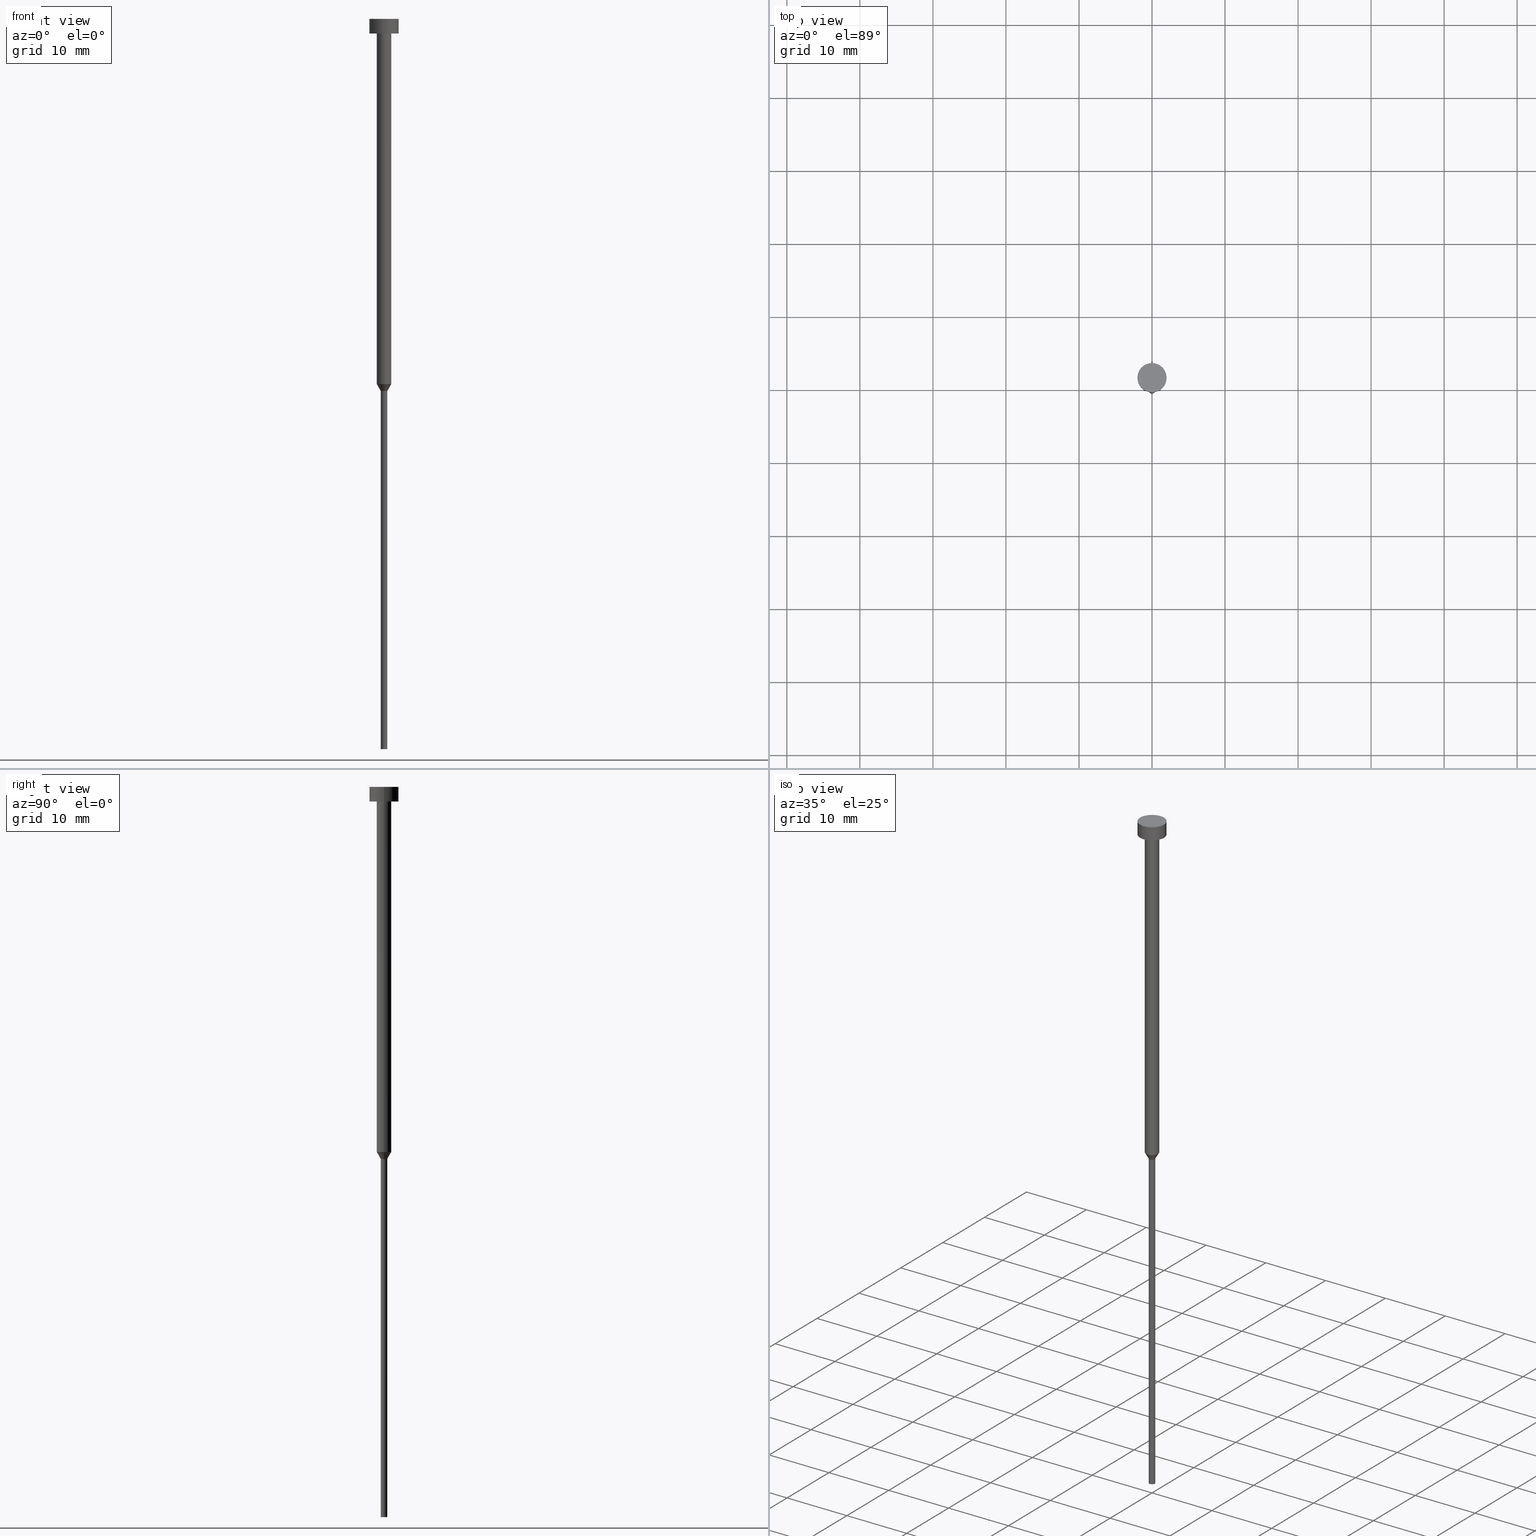
[diagram: canonical four-view strip — front | top / right | iso, engineering-drawing reading convention]
A machine part, canonical four-view strip (front | top / right | iso — engineering-drawing reading convention). The complete STEP part file that produces these views, byte-faithful:
ISO-10303-21;
HEADER;
FILE_DESCRIPTION (( 'STEP AP203' ),
    '1' );
FILE_NAME ('7cfc.STEP',
    '2023-02-13T12:41:23',
    ( '' ),
    ( '' ),
    'SwSTEP 2.0',
    'SolidWorks 2019',
    '' );
FILE_SCHEMA (( 'CONFIG_CONTROL_DESIGN' ));
ENDSEC;

DATA;
#1 = APPROVAL_DATE_TIME ( #293, #246 ) ;
#2 = CARTESIAN_POINT ( 'NONE',  ( 1.000000000000003331, 0.000000000000000000, 0.000000000000000000 ) ) ;
#3 = ORIENTED_EDGE ( 'NONE', *, *, #265, .T. ) ;
#4 = FACE_OUTER_BOUND ( 'NONE', #162, .T. ) ;
#5 = DIRECTION ( 'NONE',  ( -0.000000000000000000, -0.000000000000000000, 1.000000000000000000 ) ) ;
#6 = EDGE_LOOP ( 'NONE', ( #121, #68, #161, #206 ) ) ;
#7 = EDGE_CURVE ( 'NONE', #303, #135, #107, .T. ) ;
#8 = CYLINDRICAL_SURFACE ( 'NONE', #292, 1.000000000000003331 ) ;
#9 = ORIENTED_EDGE ( 'NONE', *, *, #182, .F. ) ;
#10 = DIRECTION ( 'NONE',  ( 1.000000000000000000, 0.000000000000000000, 0.000000000000000000 ) ) ;
#11 = DIRECTION ( 'NONE',  ( 1.000000000000000000, 0.000000000000000000, 0.000000000000000000 ) ) ;
#12 = ORIENTED_EDGE ( 'NONE', *, *, #60, .T. ) ;
#13 = PERSON_AND_ORGANIZATION_ROLE ( 'creator' ) ;
#14 = AXIS2_PLACEMENT_3D ( 'NONE', #110, #197, #294 ) ;
#15 = CARTESIAN_POINT ( 'NONE',  ( -1.000000000000003553, 1.224646799147357398E-16, -2.000000000000000444 ) ) ;
#16 = EDGE_CURVE ( 'NONE', #325, #320, #39, .T. ) ;
#17 = CLOSED_SHELL ( 'NONE', ( #290, #202, #335, #279, #67, #112, #228, #148, #81, #88, #217 ) ) ;
#18 = DIRECTION ( 'NONE',  ( -0.000000000000000000, -0.000000000000000000, 1.000000000000000000 ) ) ;
#19 = CC_DESIGN_PERSON_AND_ORGANIZATION_ASSIGNMENT ( #45, #126, ( #225 ) ) ;
#20 = CARTESIAN_POINT ( 'NONE',  ( 0.4500000000000000111, 0.000000000000000000, 0.000000000000000000 ) ) ;
#21 = FACE_OUTER_BOUND ( 'NONE', #130, .T. ) ;
#22 = LOCAL_TIME ( 13, 41, 23.00000000000000000, #183 ) ;
#23 = VERTEX_POINT ( 'NONE', #353 ) ;
#24 = EDGE_LOOP ( 'NONE', ( #187, #52 ) ) ;
#25 = APPROVAL_DATE_TIME ( #232, #125 ) ;
#26 = EDGE_CURVE ( 'NONE', #140, #135, #331, .T. ) ;
#27 = DIRECTION ( 'NONE',  ( -0.000000000000000000, -0.000000000000000000, 1.000000000000000000 ) ) ;
#28 = APPLICATION_CONTEXT ( 'configuration controlled 3d designs of mechanical parts and assemblies' ) ;
#29 = CARTESIAN_POINT ( 'NONE',  ( -1.000000000000003109, 1.224646799147356905E-16, -50.00000000000000000 ) ) ;
#30 = ORIENTED_EDGE ( 'NONE', *, *, #256, .T. ) ;
#31 = CC_DESIGN_PERSON_AND_ORGANIZATION_ASSIGNMENT ( #150, #205, ( #74 ) ) ;
#32 = CC_DESIGN_APPROVAL ( #125, ( #255 ) ) ;
#33 = DIRECTION ( 'NONE',  ( 0.000000000000000000, -0.000000000000000000, 1.000000000000000000 ) ) ;
#34 = FACE_OUTER_BOUND ( 'NONE', #299, .T. ) ;
#35 = CARTESIAN_POINT ( 'NONE',  ( 0.000000000000000000, 0.000000000000000000, -100.0000000000000000 ) ) ;
#36 = ORGANIZATION ( 'NEUR�EN�', 'NEUR�EN�', '' ) ;
#37 = CARTESIAN_POINT ( 'NONE',  ( -2.000000000000000000, 2.449293598294706414E-16, -2.449293598294705921E-16 ) ) ;
#38 = DIRECTION ( 'NONE',  ( -0.000000000000000000, -0.000000000000000000, 1.000000000000000000 ) ) ;
#39 = CIRCLE ( 'NONE', #240, 1.000000000000003553 ) ;
#40 = DIRECTION ( 'NONE',  ( 1.000000000000000000, 0.000000000000000000, 0.000000000000000000 ) ) ;
#41 = AXIS2_PLACEMENT_3D ( 'NONE', #159, #242, #259 ) ;
#42 = AXIS2_PLACEMENT_3D ( 'NONE', #222, #61, #247 ) ;
#43 = EDGE_CURVE ( 'NONE', #311, #185, #282, .T. ) ;
#44 = CARTESIAN_POINT ( 'NONE',  ( -0.4500000000000000111, 5.510910596163088939E-17, 0.000000000000000000 ) ) ;
#45 = PERSON_AND_ORGANIZATION ( #326, #36 ) ;
#46 = ORIENTED_EDGE ( 'NONE', *, *, #221, .T. ) ;
#47 = EDGE_CURVE ( 'NONE', #302, #140, #351, .T. ) ;
#48 = EDGE_LOOP ( 'NONE', ( #296, #128, #59, #350 ) ) ;
#49 = APPROVAL_STATUS ( 'not_yet_approved' ) ;
#50 = COORDINATED_UNIVERSAL_TIME_OFFSET ( 1, 0, .AHEAD. ) ;
#51 = LINE ( 'NONE', #29, #105 ) ;
#52 = ORIENTED_EDGE ( 'NONE', *, *, #43, .T. ) ;
#53 = CARTESIAN_POINT ( 'NONE',  ( 1.000000000000003109, 0.000000000000000000, -50.00000000000000000 ) ) ;
#54 = EDGE_LOOP ( 'NONE', ( #111, #124 ) ) ;
#55 = APPLICATION_CONTEXT ( 'configuration controlled 3d designs of mechanical parts and assemblies' ) ;
#56 = EDGE_CURVE ( 'NONE', #185, #311, #341, .T. ) ;
#57 = DIRECTION ( 'NONE',  ( -1.000000000000000000, 0.000000000000000000, -0.000000000000000000 ) ) ;
#58 = CARTESIAN_POINT ( 'NONE',  ( 0.000000000000000000, 0.000000000000000000, -50.00000000000000000 ) ) ;
#59 = ORIENTED_EDGE ( 'NONE', *, *, #26, .T. ) ;
#60 = EDGE_CURVE ( 'NONE', #303, #320, #87, .T. ) ;
#61 = DIRECTION ( 'NONE',  ( -0.000000000000000000, -0.000000000000000000, 1.000000000000000000 ) ) ;
#62 = APPROVAL_STATUS ( 'not_yet_approved' ) ;
#63 = CARTESIAN_POINT ( 'NONE',  ( -0.4500000000000000111, 5.510910596163088939E-17, -100.0000000000000000 ) ) ;
#64 =( NAMED_UNIT ( * ) PLANE_ANGLE_UNIT ( ) SI_UNIT ( $, .RADIAN. ) );
#65 = AXIS2_PLACEMENT_3D ( 'NONE', #66, #312, #40 ) ;
#66 = CARTESIAN_POINT ( 'NONE',  ( 0.000000000000000000, 0.000000000000000000, -2.449293598294705921E-16 ) ) ;
#67 = ADVANCED_FACE ( 'NONE', ( #21 ), #177, .T. ) ;
#68 = ORIENTED_EDGE ( 'NONE', *, *, #182, .T. ) ;
#69 = EDGE_CURVE ( 'NONE', #355, #23, #230, .T. ) ;
#70 = AXIS2_PLACEMENT_3D ( 'NONE', #213, #173, #168 ) ;
#71 = PERSON_AND_ORGANIZATION ( #326, #36 ) ;
#72 = ORIENTED_EDGE ( 'NONE', *, *, #16, .T. ) ;
#73 = CARTESIAN_POINT ( 'NONE',  ( 0.000000000000000000, 0.000000000000000000, 0.000000000000000000 ) ) ;
#74 = PRODUCT_DEFINITION_FORMATION_WITH_SPECIFIED_SOURCE ( 'LIBOVOLN�', '', #225, .NOT_KNOWN. ) ;
#75 = CARTESIAN_POINT ( 'NONE',  ( 1.000000000000003109, 0.000000000000000000, -50.00000000000000000 ) ) ;
#76 = CARTESIAN_POINT ( 'NONE',  ( -2.000000000000000000, 2.449293598294706414E-16, 0.000000000000000000 ) ) ;
#77 = FACE_OUTER_BOUND ( 'NONE', #289, .T. ) ;
#78 = DIRECTION ( 'NONE',  ( 1.000000000000000000, 0.000000000000000000, 0.000000000000000000 ) ) ;
#79 = CARTESIAN_POINT ( 'NONE',  ( 0.000000000000000000, 0.000000000000000000, 0.000000000000000000 ) ) ;
#80 = ORIENTED_EDGE ( 'NONE', *, *, #120, .T. ) ;
#81 = ADVANCED_FACE ( 'NONE', ( #254, #316 ), #252, .T. ) ;
#82 = DIRECTION ( 'NONE',  ( 1.000000000000000000, 0.000000000000000000, 0.000000000000000000 ) ) ;
#83 = PRODUCT_DEFINITION_SHAPE ( 'NONE', 'NONE',  #207 ) ;
#84 = CARTESIAN_POINT ( 'NONE',  ( -2.000000000000000000, 2.449293598294706414E-16, -2.000000000000000444 ) ) ;
#85 = AXIS2_PLACEMENT_3D ( 'NONE', #196, #27, #236 ) ;
#86 =( LENGTH_UNIT ( ) NAMED_UNIT ( * ) SI_UNIT ( .MILLI., .METRE. ) );
#87 = LINE ( 'NONE', #181, #223 ) ;
#88 = ADVANCED_FACE ( 'NONE', ( #214 ), #104, .T. ) ;
#89 = PRODUCT_RELATED_PRODUCT_CATEGORY ( 'detail', '', ( #225 ) ) ;
#90 = EDGE_LOOP ( 'NONE', ( #245, #30, #237, #191 ) ) ;
#91 = AXIS2_PLACEMENT_3D ( 'NONE', #167, #5, #82 ) ;
#92 = DIRECTION ( 'NONE',  ( -0.000000000000000000, -0.000000000000000000, 1.000000000000000000 ) ) ;
#93 = ORIENTED_EDGE ( 'NONE', *, *, #199, .F. ) ;
#94 = PERSON_AND_ORGANIZATION_ROLE ( 'creator' ) ;
#95 = ORIENTED_EDGE ( 'NONE', *, *, #346, .F. ) ;
#96 = SHAPE_DEFINITION_REPRESENTATION ( #83, #233 ) ;
#97 = APPLICATION_PROTOCOL_DEFINITION ( 'international standard', 'config_control_design', 1994, #55 ) ;
#98 = CARTESIAN_POINT ( 'NONE',  ( 0.000000000000000000, 0.000000000000000000, -50.95262794416288443 ) ) ;
#99 = AXIS2_PLACEMENT_3D ( 'NONE', #58, #211, #215 ) ;
#100 = DIRECTION ( 'NONE',  ( -0.5000000000000014433, 6.123233995736784525E-17, 0.8660254037844379305 ) ) ;
#101 = APPROVAL ( #62, 'NEUR�EN�' ) ;
#102 = APPROVAL_ROLE ( '' ) ;
#103 = DIRECTION ( 'NONE',  ( -0.000000000000000000, -0.000000000000000000, 1.000000000000000000 ) ) ;
#104 = CYLINDRICAL_SURFACE ( 'NONE', #186, 2.000000000000000000 ) ;
#105 = VECTOR ( 'NONE', #100, 999.9999999999998863 ) ;
#106 = CARTESIAN_POINT ( 'NONE',  ( 0.000000000000000000, 0.000000000000000000, -2.000000000000000444 ) ) ;
#107 = CIRCLE ( 'NONE', #99, 1.000000000000003109 ) ;
#108 = CARTESIAN_POINT ( 'NONE',  ( 2.000000000000000000, 0.000000000000000000, 0.000000000000000000 ) ) ;
#109 = CARTESIAN_POINT ( 'NONE',  ( 0.000000000000000000, -2.000000000000000000, -2.000000000000000444 ) ) ;
#110 = CARTESIAN_POINT ( 'NONE',  ( 0.000000000000000000, 0.000000000000000000, 0.000000000000000000 ) ) ;
#111 = ORIENTED_EDGE ( 'NONE', *, *, #349, .F. ) ;
#112 = ADVANCED_FACE ( 'NONE', ( #77 ), #220, .T. ) ;
#113 = CYLINDRICAL_SURFACE ( 'NONE', #42, 0.4500000000000000111 ) ;
#114 = CIRCLE ( 'NONE', #285, 1.000000000000003553 ) ;
#115 = AXIS2_PLACEMENT_3D ( 'NONE', #171, #342, #144 ) ;
#116 = CALENDAR_DATE ( 2023, 13, 2 ) ;
#117 = DIRECTION ( 'NONE',  ( 1.000000000000000000, 0.000000000000000000, 0.000000000000000000 ) ) ;
#118 = DIRECTION ( 'NONE',  ( 1.000000000000000000, 0.000000000000000000, 0.000000000000000000 ) ) ;
#119 = PERSON_AND_ORGANIZATION ( #326, #36 ) ;
#120 = EDGE_CURVE ( 'NONE', #337, #231, #323, .T. ) ;
#121 = ORIENTED_EDGE ( 'NONE', *, *, #349, .T. ) ;
#122 = DIRECTION ( 'NONE',  ( -1.000000000000000000, 0.000000000000000000, -0.000000000000000000 ) ) ;
#123 = ORIENTED_EDGE ( 'NONE', *, *, #132, .F. ) ;
#124 = ORIENTED_EDGE ( 'NONE', *, *, #120, .F. ) ;
#125 = APPROVAL ( #354, 'NEUR�EN�' ) ;
#126 = PERSON_AND_ORGANIZATION_ROLE ( 'design_owner' ) ;
#127 = ORIENTED_EDGE ( 'NONE', *, *, #43, .F. ) ;
#128 = ORIENTED_EDGE ( 'NONE', *, *, #271, .T. ) ;
#129 = FACE_OUTER_BOUND ( 'NONE', #164, .T. ) ;
#130 = EDGE_LOOP ( 'NONE', ( #123, #95 ) ) ;
#131 = CARTESIAN_POINT ( 'NONE',  ( 0.000000000000000000, 0.000000000000000000, -1.224646799147352961E-16 ) ) ;
#132 = EDGE_CURVE ( 'NONE', #302, #355, #198, .T. ) ;
#133 = PERSON_AND_ORGANIZATION ( #326, #36 ) ;
#134 = DIRECTION ( 'NONE',  ( 1.000000000000000000, 0.000000000000000000, 0.000000000000000000 ) ) ;
#135 = VERTEX_POINT ( 'NONE', #53 ) ;
#136 = DIRECTION ( 'NONE',  ( 1.000000000000000000, 0.000000000000000000, 0.000000000000000000 ) ) ;
#137 = CARTESIAN_POINT ( 'NONE',  ( 0.000000000000000000, 0.000000000000000000, -2.000000000000000444 ) ) ;
#138 = CONICAL_SURFACE ( 'NONE', #115, 1.000000000000003109, 0.5235987755983005920 ) ;
#139 = LINE ( 'NONE', #108, #243 ) ;
#140 = VERTEX_POINT ( 'NONE', #264 ) ;
#141 = FACE_OUTER_BOUND ( 'NONE', #6, .T. ) ;
#142 = AXIS2_PLACEMENT_3D ( 'NONE', #98, #324, #288 ) ;
#143 = VECTOR ( 'NONE', #193, 1000.000000000000000 ) ;
#144 = DIRECTION ( 'NONE',  ( 1.000000000000000000, 0.000000000000000000, 0.000000000000000000 ) ) ;
#145 = APPROVAL_ROLE ( '' ) ;
#146 = APPROVAL_DATE_TIME ( #307, #101 ) ;
#147 = DIRECTION ( 'NONE',  ( -0.000000000000000000, -0.000000000000000000, 1.000000000000000000 ) ) ;
#148 = ADVANCED_FACE ( 'NONE', ( #4 ), #8, .T. ) ;
#149 = CARTESIAN_POINT ( 'NONE',  ( 0.000000000000000000, 0.000000000000000000, -2.449293598294705921E-16 ) ) ;
#150 = PERSON_AND_ORGANIZATION ( #326, #36 ) ;
#151 = DIRECTION ( 'NONE',  ( -0.000000000000000000, -0.000000000000000000, 1.000000000000000000 ) ) ;
#152 = ORIENTED_EDGE ( 'NONE', *, *, #16, .F. ) ;
#153 = CC_DESIGN_PERSON_AND_ORGANIZATION_ASSIGNMENT ( #310, #13, ( #74 ) ) ;
#154 = DATE_TIME_ROLE ( 'classification_date' ) ;
#155 = VECTOR ( 'NONE', #92, 1000.000000000000000 ) ;
#156 = PERSON_AND_ORGANIZATION ( #326, #36 ) ;
#157 = ORIENTED_EDGE ( 'NONE', *, *, #250, .F. ) ;
#158 = DIRECTION ( 'NONE',  ( -0.000000000000000000, -0.000000000000000000, 1.000000000000000000 ) ) ;
#159 = CARTESIAN_POINT ( 'NONE',  ( 0.000000000000000000, 0.000000000000000000, -100.0000000000000000 ) ) ;
#160 = CONICAL_SURFACE ( 'NONE', #85, 1.000000000000003109, 0.5235987755983005920 ) ;
#161 = ORIENTED_EDGE ( 'NONE', *, *, #56, .F. ) ;
#162 = EDGE_LOOP ( 'NONE', ( #209, #189, #170, #93 ) ) ;
#163 = APPLICATION_PROTOCOL_DEFINITION ( 'international standard', 'config_control_design', 1994, #28 ) ;
#164 = EDGE_LOOP ( 'NONE', ( #3, #12, #152, #234 ) ) ;
#165 = MECHANICAL_CONTEXT ( 'NONE', #28, 'mechanical' ) ;
#166 = DIRECTION ( 'NONE',  ( 1.000000000000000000, 0.000000000000000000, 0.000000000000000000 ) ) ;
#167 = CARTESIAN_POINT ( 'NONE',  ( 0.000000000000000000, 0.000000000000000000, 0.000000000000000000 ) ) ;
#168 = DIRECTION ( 'NONE',  ( 1.000000000000000000, 0.000000000000000000, 0.000000000000000000 ) ) ;
#169 = DIRECTION ( 'NONE',  ( 0.000000000000000000, 0.000000000000000000, -1.000000000000000000 ) ) ;
#170 = ORIENTED_EDGE ( 'NONE', *, *, #176, .T. ) ;
#171 = CARTESIAN_POINT ( 'NONE',  ( 0.000000000000000000, 0.000000000000000000, -50.00000000000000000 ) ) ;
#172 = CC_DESIGN_PERSON_AND_ORGANIZATION_ASSIGNMENT ( #297, #94, ( #207 ) ) ;
#173 = DIRECTION ( 'NONE',  ( -0.000000000000000000, -0.000000000000000000, 1.000000000000000000 ) ) ;
#174 = CIRCLE ( 'NONE', #276, 0.4500000000000000111 ) ;
#175 = DIRECTION ( 'NONE',  ( 1.000000000000000000, 0.000000000000000000, 0.000000000000000000 ) ) ;
#176 = EDGE_CURVE ( 'NONE', #135, #325, #216, .T. ) ;
#177 = PLANE ( 'NONE',  #313 ) ;
#178 = CC_DESIGN_SECURITY_CLASSIFICATION ( #255, ( #74 ) ) ;
#179 = DIRECTION ( 'NONE',  ( -0.000000000000000000, -0.000000000000000000, 1.000000000000000000 ) ) ;
#180 = AXIS2_PLACEMENT_3D ( 'NONE', #149, #151, #118 ) ;
#181 = CARTESIAN_POINT ( 'NONE',  ( -1.000000000000003331, 1.224646799147357151E-16, 0.000000000000000000 ) ) ;
#182 = EDGE_CURVE ( 'NONE', #337, #311, #338, .T. ) ;
#183 = COORDINATED_UNIVERSAL_TIME_OFFSET ( 1, 0, .AHEAD. ) ;
#184 = CC_DESIGN_APPROVAL ( #101, ( #74 ) ) ;
#185 = VERTEX_POINT ( 'NONE', #298 ) ;
#186 = AXIS2_PLACEMENT_3D ( 'NONE', #79, #300, #11 ) ;
#187 = ORIENTED_EDGE ( 'NONE', *, *, #56, .T. ) ;
#188 = DATE_AND_TIME ( #241, #306 ) ;
#189 = ORIENTED_EDGE ( 'NONE', *, *, #7, .T. ) ;
#190 = VECTOR ( 'NONE', #263, 1000.000000000000000 ) ;
#191 = ORIENTED_EDGE ( 'NONE', *, *, #26, .F. ) ;
#192 = DIRECTION ( 'NONE',  ( 0.5000000000000014433, 0.000000000000000000, 0.8660254037844379305 ) ) ;
#193 = DIRECTION ( 'NONE',  ( -0.000000000000000000, -0.000000000000000000, 1.000000000000000000 ) ) ;
#194 = CYLINDRICAL_SURFACE ( 'NONE', #343, 1.000000000000003331 ) ;
#195 = CC_DESIGN_DATE_AND_TIME_ASSIGNMENT ( #188, #154, ( #255 ) ) ;
#196 = CARTESIAN_POINT ( 'NONE',  ( 0.000000000000000000, 0.000000000000000000, -50.00000000000000000 ) ) ;
#197 = DIRECTION ( 'NONE',  ( 0.000000000000000000, 0.000000000000000000, 1.000000000000000000 ) ) ;
#198 = CIRCLE ( 'NONE', #41, 0.4500000000000000111 ) ;
#199 = EDGE_CURVE ( 'NONE', #320, #325, #114, .T. ) ;
#200 = VECTOR ( 'NONE', #192, 999.9999999999998863 ) ;
#201 = CARTESIAN_POINT ( 'NONE',  ( 0.000000000000000000, 0.000000000000000000, -50.95262794416288443 ) ) ;
#202 = ADVANCED_FACE ( 'NONE', ( #129 ), #194, .T. ) ;
#203 = CALENDAR_DATE ( 2023, 13, 2 ) ;
#204 = APPROVAL_PERSON_ORGANIZATION ( #71, #246, #261 ) ;
#205 = PERSON_AND_ORGANIZATION_ROLE ( 'design_supplier' ) ;
#206 = ORIENTED_EDGE ( 'NONE', *, *, #221, .F. ) ;
#207 = PRODUCT_DEFINITION ( 'NEZN�M�', '', #74, #238 ) ;
#208 = ORIENTED_EDGE ( 'NONE', *, *, #271, .F. ) ;
#209 = ORIENTED_EDGE ( 'NONE', *, *, #60, .F. ) ;
#210 = DIRECTION ( 'NONE',  ( -0.000000000000000000, -0.000000000000000000, 1.000000000000000000 ) ) ;
#211 = DIRECTION ( 'NONE',  ( -0.000000000000000000, -0.000000000000000000, 1.000000000000000000 ) ) ;
#212 = ORIENTED_EDGE ( 'NONE', *, *, #346, .T. ) ;
#213 = CARTESIAN_POINT ( 'NONE',  ( 0.000000000000000000, 0.000000000000000000, -50.00000000000000000 ) ) ;
#214 = FACE_OUTER_BOUND ( 'NONE', #273, .T. ) ;
#215 = DIRECTION ( 'NONE',  ( 1.000000000000000000, 0.000000000000000000, 0.000000000000000000 ) ) ;
#216 = LINE ( 'NONE', #2, #190 ) ;
#217 = ADVANCED_FACE ( 'NONE', ( #269 ), #239, .T. ) ;
#218 = ORIENTED_EDGE ( 'NONE', *, *, #47, .F. ) ;
#219 = DIRECTION ( 'NONE',  ( -0.000000000000000000, -0.000000000000000000, 1.000000000000000000 ) ) ;
#220 = CYLINDRICAL_SURFACE ( 'NONE', #91, 0.4500000000000000111 ) ;
#221 = EDGE_CURVE ( 'NONE', #231, #185, #139, .T. ) ;
#222 = CARTESIAN_POINT ( 'NONE',  ( 0.000000000000000000, 0.000000000000000000, 0.000000000000000000 ) ) ;
#223 = VECTOR ( 'NONE', #253, 1000.000000000000000 ) ;
#224 = COORDINATED_UNIVERSAL_TIME_OFFSET ( 1, 0, .AHEAD. ) ;
#225 = PRODUCT ( '7cfc', '7cfc', '', ( #165 ) ) ;
#226 =( NAMED_UNIT ( * ) SI_UNIT ( $, .STERADIAN. ) SOLID_ANGLE_UNIT ( ) );
#227 = UNCERTAINTY_MEASURE_WITH_UNIT (LENGTH_MEASURE( 1.000000000000000082E-05 ), #86, 'distance_accuracy_value', 'NONE');
#228 = ADVANCED_FACE ( 'NONE', ( #328 ), #160, .T. ) ;
#229 = CC_DESIGN_APPROVAL ( #246, ( #207 ) ) ;
#230 = LINE ( 'NONE', #44, #155 ) ;
#231 = VERTEX_POINT ( 'NONE', #352 ) ;
#232 = DATE_AND_TIME ( #257, #277 ) ;
#233 = ADVANCED_BREP_SHAPE_REPRESENTATION ( '7cfc', ( #329, #14 ), #339 ) ;
#234 = ORIENTED_EDGE ( 'NONE', *, *, #176, .F. ) ;
#235 = AXIS2_PLACEMENT_3D ( 'NONE', #249, #18, #304 ) ;
#236 = DIRECTION ( 'NONE',  ( 1.000000000000000000, 0.000000000000000000, 0.000000000000000000 ) ) ;
#237 = ORIENTED_EDGE ( 'NONE', *, *, #265, .F. ) ;
#238 = DESIGN_CONTEXT ( 'detailed design', #55, 'design' ) ;
#239 = PLANE ( 'NONE',  #318 ) ;
#240 = AXIS2_PLACEMENT_3D ( 'NONE', #267, #158, #260 ) ;
#241 = CALENDAR_DATE ( 2023, 13, 2 ) ;
#242 = DIRECTION ( 'NONE',  ( -0.000000000000000000, -0.000000000000000000, 1.000000000000000000 ) ) ;
#243 = VECTOR ( 'NONE', #219, 1000.000000000000000 ) ;
#244 = DIRECTION ( 'NONE',  ( 1.000000000000000000, 0.000000000000000000, 0.000000000000000000 ) ) ;
#245 = ORIENTED_EDGE ( 'NONE', *, *, #250, .T. ) ;
#246 = APPROVAL ( #49, 'NEUR�EN�' ) ;
#247 = DIRECTION ( 'NONE',  ( 1.000000000000000000, 0.000000000000000000, 0.000000000000000000 ) ) ;
#248 = CYLINDRICAL_SURFACE ( 'NONE', #286, 2.000000000000000000 ) ;
#249 = CARTESIAN_POINT ( 'NONE',  ( 0.000000000000000000, 0.000000000000000000, -2.000000000000000444 ) ) ;
#250 = EDGE_CURVE ( 'NONE', #140, #23, #305, .T. ) ;
#251 = CARTESIAN_POINT ( 'NONE',  ( -1.000000000000003109, 1.224646799147356905E-16, -50.00000000000000000 ) ) ;
#252 = PLANE ( 'NONE',  #266 ) ;
#253 = DIRECTION ( 'NONE',  ( -0.000000000000000000, -0.000000000000000000, 1.000000000000000000 ) ) ;
#254 = FACE_BOUND ( 'NONE', #322, .T. ) ;
#255 = SECURITY_CLASSIFICATION ( '', '', #287 ) ;
#256 = EDGE_CURVE ( 'NONE', #23, #303, #51, .T. ) ;
#257 = CALENDAR_DATE ( 2023, 13, 2 ) ;
#258 = ORIENTED_EDGE ( 'NONE', *, *, #132, .T. ) ;
#259 = DIRECTION ( 'NONE',  ( 1.000000000000000000, 0.000000000000000000, 0.000000000000000000 ) ) ;
#260 = DIRECTION ( 'NONE',  ( 1.000000000000000000, 0.000000000000000000, 0.000000000000000000 ) ) ;
#261 = APPROVAL_ROLE ( '' ) ;
#262 = AXIS2_PLACEMENT_3D ( 'NONE', #137, #274, #136 ) ;
#263 = DIRECTION ( 'NONE',  ( -0.000000000000000000, -0.000000000000000000, 1.000000000000000000 ) ) ;
#264 = CARTESIAN_POINT ( 'NONE',  ( 0.4500000000000000111, 0.000000000000000000, -50.95262794416288443 ) ) ;
#265 = EDGE_CURVE ( 'NONE', #135, #303, #270, .T. ) ;
#266 = AXIS2_PLACEMENT_3D ( 'NONE', #109, #169, #57 ) ;
#267 = CARTESIAN_POINT ( 'NONE',  ( 0.000000000000000000, 0.000000000000000000, -2.000000000000000444 ) ) ;
#268 = ORIENTED_EDGE ( 'NONE', *, *, #47, .T. ) ;
#269 = FACE_OUTER_BOUND ( 'NONE', #24, .T. ) ;
#270 = CIRCLE ( 'NONE', #70, 1.000000000000003109 ) ;
#271 = EDGE_CURVE ( 'NONE', #23, #140, #174, .T. ) ;
#272 = DIRECTION ( 'NONE',  ( -0.000000000000000000, -0.000000000000000000, 1.000000000000000000 ) ) ;
#273 = EDGE_LOOP ( 'NONE', ( #9, #80, #46, #127 ) ) ;
#274 = DIRECTION ( 'NONE',  ( -0.000000000000000000, -0.000000000000000000, 1.000000000000000000 ) ) ;
#275 = CARTESIAN_POINT ( 'NONE',  ( 0.000000000000000000, 0.000000000000000000, 0.000000000000000000 ) ) ;
#276 = AXIS2_PLACEMENT_3D ( 'NONE', #201, #272, #175 ) ;
#277 = LOCAL_TIME ( 13, 41, 23.00000000000000000, #295 ) ;
#278 = CARTESIAN_POINT ( 'NONE',  ( 0.4500000000000000111, 0.000000000000000000, -100.0000000000000000 ) ) ;
#279 = ADVANCED_FACE ( 'NONE', ( #34 ), #113, .T. ) ;
#280 = CARTESIAN_POINT ( 'NONE',  ( 1.000000000000003553, 0.000000000000000000, -2.000000000000000444 ) ) ;
#281 = CC_DESIGN_DATE_AND_TIME_ASSIGNMENT ( #347, #345, ( #207 ) ) ;
#282 = CIRCLE ( 'NONE', #65, 2.000000000000000000 ) ;
#283 = DIRECTION ( 'NONE',  ( 0.000000000000000000, 0.000000000000000000, -1.000000000000000000 ) ) ;
#284 = ORIENTED_EDGE ( 'NONE', *, *, #69, .F. ) ;
#285 = AXIS2_PLACEMENT_3D ( 'NONE', #106, #336, #78 ) ;
#286 = AXIS2_PLACEMENT_3D ( 'NONE', #275, #38, #10 ) ;
#287 = SECURITY_CLASSIFICATION_LEVEL ( 'unclassified' ) ;
#288 = DIRECTION ( 'NONE',  ( 1.000000000000000000, 0.000000000000000000, 0.000000000000000000 ) ) ;
#289 = EDGE_LOOP ( 'NONE', ( #284, #212, #268, #208 ) ) ;
#290 = ADVANCED_FACE ( 'NONE', ( #141 ), #248, .T. ) ;
#291 = LOCAL_TIME ( 13, 41, 23.00000000000000000, #50 ) ;
#292 = AXIS2_PLACEMENT_3D ( 'NONE', #333, #103, #134 ) ;
#293 = DATE_AND_TIME ( #327, #291 ) ;
#294 = DIRECTION ( 'NONE',  ( 1.000000000000000000, 0.000000000000000000, 0.000000000000000000 ) ) ;
#295 = COORDINATED_UNIVERSAL_TIME_OFFSET ( 1, 0, .AHEAD. ) ;
#296 = ORIENTED_EDGE ( 'NONE', *, *, #256, .F. ) ;
#297 = PERSON_AND_ORGANIZATION ( #326, #36 ) ;
#298 = CARTESIAN_POINT ( 'NONE',  ( 2.000000000000000000, 0.000000000000000000, -2.449293598294705921E-16 ) ) ;
#299 = EDGE_LOOP ( 'NONE', ( #258, #315, #157, #218 ) ) ;
#300 = DIRECTION ( 'NONE',  ( -0.000000000000000000, -0.000000000000000000, 1.000000000000000000 ) ) ;
#301 = CIRCLE ( 'NONE', #235, 2.000000000000000000 ) ;
#302 = VERTEX_POINT ( 'NONE', #278 ) ;
#303 = VERTEX_POINT ( 'NONE', #251 ) ;
#304 = DIRECTION ( 'NONE',  ( 1.000000000000000000, 0.000000000000000000, 0.000000000000000000 ) ) ;
#305 = CIRCLE ( 'NONE', #142, 0.4500000000000000111 ) ;
#306 = LOCAL_TIME ( 13, 41, 23.00000000000000000, #330 ) ;
#307 = DATE_AND_TIME ( #203, #332 ) ;
#308 = FACE_OUTER_BOUND ( 'NONE', #90, .T. ) ;
#309 = VECTOR ( 'NONE', #179, 1000.000000000000000 ) ;
#310 = PERSON_AND_ORGANIZATION ( #326, #36 ) ;
#311 = VERTEX_POINT ( 'NONE', #37 ) ;
#312 = DIRECTION ( 'NONE',  ( -0.000000000000000000, -0.000000000000000000, 1.000000000000000000 ) ) ;
#313 = AXIS2_PLACEMENT_3D ( 'NONE', #314, #283, #122 ) ;
#314 = CARTESIAN_POINT ( 'NONE',  ( 0.000000000000000000, 0.000000000000000000, -100.0000000000000000 ) ) ;
#315 = ORIENTED_EDGE ( 'NONE', *, *, #69, .T. ) ;
#316 = FACE_OUTER_BOUND ( 'NONE', #54, .T. ) ;
#317 = CC_DESIGN_PERSON_AND_ORGANIZATION_ASSIGNMENT ( #133, #319, ( #255 ) ) ;
#318 = AXIS2_PLACEMENT_3D ( 'NONE', #131, #33, #244 ) ;
#319 = PERSON_AND_ORGANIZATION_ROLE ( 'classification_officer' ) ;
#320 = VERTEX_POINT ( 'NONE', #15 ) ;
#321 = AXIS2_PLACEMENT_3D ( 'NONE', #35, #147, #117 ) ;
#322 = EDGE_LOOP ( 'NONE', ( #72, #334 ) ) ;
#323 = CIRCLE ( 'NONE', #262, 2.000000000000000000 ) ;
#324 = DIRECTION ( 'NONE',  ( -0.000000000000000000, -0.000000000000000000, 1.000000000000000000 ) ) ;
#325 = VERTEX_POINT ( 'NONE', #280 ) ;
#326 = PERSON ( 'NEUR�EN�', 'NEUR�EN�', 'NEUR�EN�', ('NEUR�EN�'), ('NEUR�EN�'), ('NEUR�EN�') ) ;
#327 = CALENDAR_DATE ( 2023, 13, 2 ) ;
#328 = FACE_OUTER_BOUND ( 'NONE', #48, .T. ) ;
#329 = MANIFOLD_SOLID_BREP ( 'Rotovat1', #17 ) ;
#330 = COORDINATED_UNIVERSAL_TIME_OFFSET ( 1, 0, .AHEAD. ) ;
#331 = LINE ( 'NONE', #75, #200 ) ;
#332 = LOCAL_TIME ( 13, 41, 23.00000000000000000, #224 ) ;
#333 = CARTESIAN_POINT ( 'NONE',  ( 0.000000000000000000, 0.000000000000000000, 0.000000000000000000 ) ) ;
#334 = ORIENTED_EDGE ( 'NONE', *, *, #199, .T. ) ;
#335 = ADVANCED_FACE ( 'NONE', ( #308 ), #138, .T. ) ;
#336 = DIRECTION ( 'NONE',  ( -0.000000000000000000, -0.000000000000000000, 1.000000000000000000 ) ) ;
#337 = VERTEX_POINT ( 'NONE', #84 ) ;
#338 = LINE ( 'NONE', #76, #143 ) ;
#339 =( GEOMETRIC_REPRESENTATION_CONTEXT ( 3 ) GLOBAL_UNCERTAINTY_ASSIGNED_CONTEXT ( ( #227 ) ) GLOBAL_UNIT_ASSIGNED_CONTEXT ( ( #86, #64, #226 ) ) REPRESENTATION_CONTEXT ( 'NONE', 'WORKASPACE' ) );
#340 = APPROVAL_PERSON_ORGANIZATION ( #156, #125, #102 ) ;
#341 = CIRCLE ( 'NONE', #180, 2.000000000000000000 ) ;
#342 = DIRECTION ( 'NONE',  ( -0.000000000000000000, -0.000000000000000000, 1.000000000000000000 ) ) ;
#343 = AXIS2_PLACEMENT_3D ( 'NONE', #73, #210, #166 ) ;
#344 = APPROVAL_PERSON_ORGANIZATION ( #119, #101, #145 ) ;
#345 = DATE_TIME_ROLE ( 'creation_date' ) ;
#346 = EDGE_CURVE ( 'NONE', #355, #302, #348, .T. ) ;
#347 = DATE_AND_TIME ( #116, #22 ) ;
#348 = CIRCLE ( 'NONE', #321, 0.4500000000000000111 ) ;
#349 = EDGE_CURVE ( 'NONE', #231, #337, #301, .T. ) ;
#350 = ORIENTED_EDGE ( 'NONE', *, *, #7, .F. ) ;
#351 = LINE ( 'NONE', #20, #309 ) ;
#352 = CARTESIAN_POINT ( 'NONE',  ( 2.000000000000000000, 0.000000000000000000, -2.000000000000000444 ) ) ;
#353 = CARTESIAN_POINT ( 'NONE',  ( -0.4500000000000000111, 5.510910596163088939E-17, -50.95262794416288443 ) ) ;
#354 = APPROVAL_STATUS ( 'not_yet_approved' ) ;
#355 = VERTEX_POINT ( 'NONE', #63 ) ;
ENDSEC;
END-ISO-10303-21;
